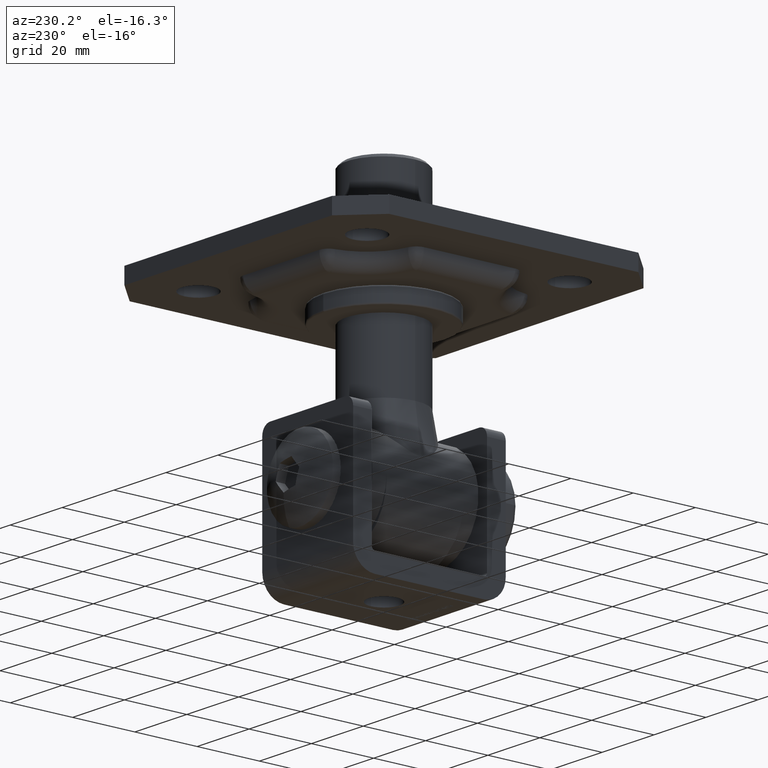
[diagram: clean part render]
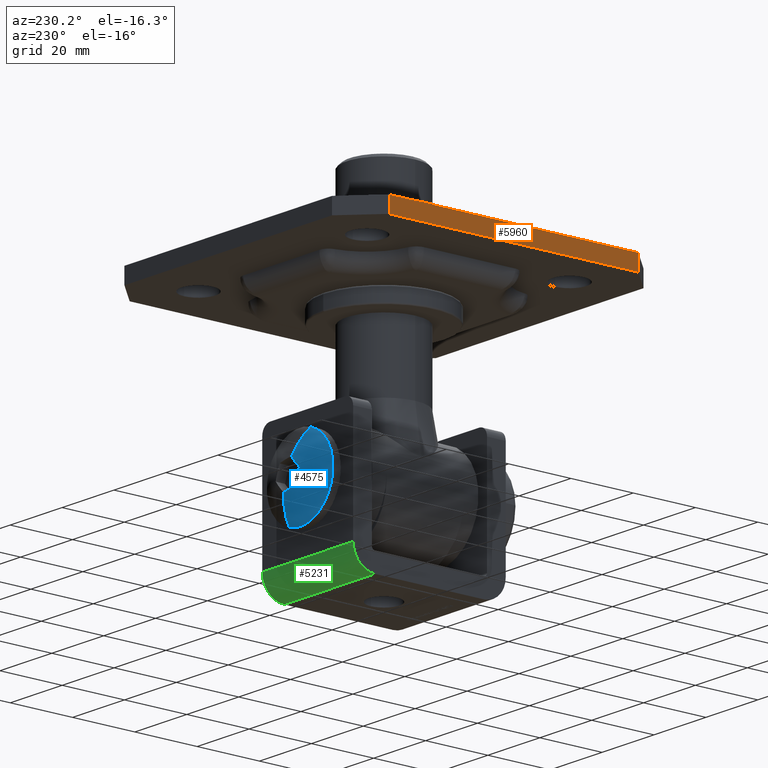
[diagram: same view with three faces highlighted in distinct colors, each labeled with its STEP entity id]
A machine part, auxiliary view with three faces highlighted in distinct colors.
Their STEP definitions:

[orange] entity #5960 — the highlighted planar face has unit normal (1, -0, -0).
#713 = VECTOR ( 'NONE', #20062, 1000.000000000000000 ) ;
#933 = CARTESIAN_POINT ( 'NONE',  ( 49.99999999999999300, 50.00000000000000000, 2.500000000000000000 ) ) ;
#1268 = CARTESIAN_POINT ( 'NONE',  ( 50.00000000000000000, -39.99999999999997900, -2.500000000000000000 ) ) ;
#2723 = PLANE ( 'NONE',  #14389 ) ;
#3048 = EDGE_CURVE ( 'NONE', #5602, #21319, #18386, .T. ) ;
#3401 = VECTOR ( 'NONE', #8300, 1000.000000000000000 ) ;
#4233 = ORIENTED_EDGE ( 'NONE', *, *, #4995, .T. ) ;
#4402 = CARTESIAN_POINT ( 'NONE',  ( 49.99999999999999300, 39.99999999999997200, 2.500000000000000000 ) ) ;
#4767 = CARTESIAN_POINT ( 'NONE',  ( 49.99999999999999300, 39.99999999999996400, -2.500000000000000000 ) ) ;
#4995 = EDGE_CURVE ( 'NONE', #21386, #21319, #10421, .T. ) ;
#5602 = VERTEX_POINT ( 'NONE', #20174 ) ;
#5834 = DIRECTION ( 'NONE',  ( 6.938893903907228400E-017, -1.000000000000000000, 0.0000000000000000000 ) ) ;
#5960 = ADVANCED_FACE ( 'NONE', ( #12839 ), #2723, .F. ) ;
#6424 = VECTOR ( 'NONE', #7456, 1000.000000000000000 ) ;
#7324 = VECTOR ( 'NONE', #9719, 1000.000000000000000 ) ;
#7456 = DIRECTION ( 'NONE',  ( -6.938893903907228400E-017, 1.000000000000000000, -0.0000000000000000000 ) ) ;
#8300 = DIRECTION ( 'NONE',  ( 0.0000000000000000000, 0.0000000000000000000, 1.000000000000000000 ) ) ;
#9719 = DIRECTION ( 'NONE',  ( -6.938893903907228400E-017, 1.000000000000000000, -0.0000000000000000000 ) ) ;
#10421 = LINE ( 'NONE', #18475, #3401 ) ;
#10607 = EDGE_LOOP ( 'NONE', ( #12786, #18126, #21280, #4233 ) ) ;
#12746 = VERTEX_POINT ( 'NONE', #1268 ) ;
#12786 = ORIENTED_EDGE ( 'NONE', *, *, #3048, .F. ) ;
#12839 = FACE_OUTER_BOUND ( 'NONE', #10607, .T. ) ;
#14210 = CARTESIAN_POINT ( 'NONE',  ( 49.99999999999999300, 50.00000000000000000, -2.500000000000000000 ) ) ;
#14389 = AXIS2_PLACEMENT_3D ( 'NONE', #933, #16416, #5834 ) ;
#16416 = DIRECTION ( 'NONE',  ( -1.000000000000000000, -6.938893903907228400E-017, 0.0000000000000000000 ) ) ;
#17725 = EDGE_CURVE ( 'NONE', #12746, #21386, #18600, .T. ) ;
#18126 = ORIENTED_EDGE ( 'NONE', *, *, #20646, .T. ) ;
#18386 = LINE ( 'NONE', #19987, #7324 ) ;
#18475 = CARTESIAN_POINT ( 'NONE',  ( 49.99999999999999300, 39.99999999999996400, 2.500000000000000000 ) ) ;
#18600 = LINE ( 'NONE', #14210, #6424 ) ;
#19219 = LINE ( 'NONE', #21769, #713 ) ;
#19987 = CARTESIAN_POINT ( 'NONE',  ( 49.99999999999999300, 50.00000000000000000, 2.500000000000000000 ) ) ;
#20062 = DIRECTION ( 'NONE',  ( 0.0000000000000000000, 0.0000000000000000000, -1.000000000000000000 ) ) ;
#20174 = CARTESIAN_POINT ( 'NONE',  ( 49.99999999999999300, -40.00000000000000000, 2.500000000000000000 ) ) ;
#20646 = EDGE_CURVE ( 'NONE', #5602, #12746, #19219, .T. ) ;
#21280 = ORIENTED_EDGE ( 'NONE', *, *, #17725, .T. ) ;
#21319 = VERTEX_POINT ( 'NONE', #4402 ) ;
#21386 = VERTEX_POINT ( 'NONE', #4767 ) ;
#21769 = CARTESIAN_POINT ( 'NONE',  ( 50.00000000000000000, -39.99999999999997900, 2.500000000000000000 ) ) ;

[blue] entity #4575 — the highlighted spherical surface has radius 20.3125 mm.
#364 = VERTEX_POINT ( 'NONE', #13013 ) ;
#643 = EDGE_CURVE ( 'NONE', #2245, #8007, #16289, .T. ) ;
#1033 = CIRCLE ( 'NONE', #11916, 12.75000000000000200 ) ;
#1127 = CARTESIAN_POINT ( 'NONE',  ( 0.0000000000000000000, 6.687499999999995600, 0.0000000000000000000 ) ) ;
#1193 = DIRECTION ( 'NONE',  ( 1.000000000000000000, -1.776991504721589600E-014, 0.0000000000000000000 ) ) ;
#1509 = DIRECTION ( 'NONE',  ( -0.0000000000000000000, -1.000000000000000000, -0.0000000000000000000 ) ) ;
#1526 = VERTEX_POINT ( 'NONE', #6640 ) ;
#1667 = DIRECTION ( 'NONE',  ( 0.0000000000000000000, 0.0000000000000000000, -1.000000000000000000 ) ) ;
#1763 = VERTEX_POINT ( 'NONE', #18116 ) ;
#1794 = ORIENTED_EDGE ( 'NONE', *, *, #643, .F. ) ;
#2050 = DIRECTION ( 'NONE',  ( -0.0000000000000000000, -1.000000000000000000, -0.0000000000000000000 ) ) ;
#2245 = VERTEX_POINT ( 'NONE', #21415 ) ;
#3195 = AXIS2_PLACEMENT_3D ( 'NONE', #12529, #5670, #11031 ) ;
#3284 = CARTESIAN_POINT ( 'NONE',  ( 0.0000000000000000000, 22.50000000000000000, 0.0000000000000000000 ) ) ;
#3750 = DIRECTION ( 'NONE',  ( 0.0000000000000000000, 0.0000000000000000000, -1.000000000000000000 ) ) ;
#4344 = EDGE_CURVE ( 'NONE', #8007, #1763, #1033, .T. ) ;
#4436 = CIRCLE ( 'NONE', #6062, 19.91475975878193000 ) ;
#4575 = ADVANCED_FACE ( 'NONE', ( #13641 ), #14711, .T. ) ;
#4646 = CARTESIAN_POINT ( 'NONE',  ( -3.464101615137753500, 6.687499999999995600, 1.999999999999998700 ) ) ;
#4834 = DIRECTION ( 'NONE',  ( 0.0000000000000000000, -0.0000000000000000000, -1.000000000000000000 ) ) ;
#5107 = ORIENTED_EDGE ( 'NONE', *, *, #9571, .T. ) ;
#5670 = DIRECTION ( 'NONE',  ( 1.224646799147353200E-016, -0.0000000000000000000, 1.000000000000000000 ) ) ;
#5893 = EDGE_CURVE ( 'NONE', #17775, #2245, #16845, .T. ) ;
#6062 = AXIS2_PLACEMENT_3D ( 'NONE', #4646, #17006, #20119 ) ;
#6464 = ORIENTED_EDGE ( 'NONE', *, *, #18073, .F. ) ;
#6640 = CARTESIAN_POINT ( 'NONE',  ( -4.618802153517001400, 26.46790249632617200, 4.336808689942017700E-016 ) ) ;
#7225 = CIRCLE ( 'NONE', #3195, 20.31250000000000400 ) ;
#7608 = DIRECTION ( 'NONE',  ( 1.000000000000000000, 0.0000000000000000000, 0.0000000000000000000 ) ) ;
#7770 = EDGE_LOOP ( 'NONE', ( #6464, #5107, #10785, #12024, #1794, #14774, #12068 ) ) ;
#8006 = DIRECTION ( 'NONE',  ( 0.0000000000000000000, 0.0000000000000000000, 1.000000000000000000 ) ) ;
#8007 = VERTEX_POINT ( 'NONE', #15638 ) ;
#9571 = EDGE_CURVE ( 'NONE', #1526, #364, #7225, .T. ) ;
#10179 = EDGE_CURVE ( 'NONE', #19159, #17775, #18038, .T. ) ;
#10785 = ORIENTED_EDGE ( 'NONE', *, *, #13702, .F. ) ;
#11021 = CARTESIAN_POINT ( 'NONE',  ( -2.309401076758501600, 26.46790249632617200, 4.000000000000000000 ) ) ;
#11031 = DIRECTION ( 'NONE',  ( 1.000000000000000000, 0.0000000000000000000, -1.224646799147353500E-016 ) ) ;
#11071 = CARTESIAN_POINT ( 'NONE',  ( 2.309401076758504300, 26.46790249632617200, 4.000000000000000000 ) ) ;
#11515 = CARTESIAN_POINT ( 'NONE',  ( 0.0000000000000000000, 6.687499999999995600, 0.0000000000000000000 ) ) ;
#11916 = AXIS2_PLACEMENT_3D ( 'NONE', #3284, #1509, #1667 ) ;
#12024 = ORIENTED_EDGE ( 'NONE', *, *, #4344, .F. ) ;
#12068 = ORIENTED_EDGE ( 'NONE', *, *, #10179, .F. ) ;
#12383 = CARTESIAN_POINT ( 'NONE',  ( 0.0000000000000000000, 22.50000000000000000, 0.0000000000000000000 ) ) ;
#12529 = CARTESIAN_POINT ( 'NONE',  ( 0.0000000000000000000, 6.687499999999995600, 0.0000000000000000000 ) ) ;
#13013 = CARTESIAN_POINT ( 'NONE',  ( -12.75000000000000200, 22.50000000000000000, 1.561424668912875700E-015 ) ) ;
#13641 = FACE_OUTER_BOUND ( 'NONE', #7770, .T. ) ;
#13702 = EDGE_CURVE ( 'NONE', #1763, #364, #19495, .T. ) ;
#14089 = DIRECTION ( 'NONE',  ( -0.8660254037844389300, -0.0000000000000000000, -0.4999999999999998300 ) ) ;
#14711 = SPHERICAL_SURFACE ( 'NONE', #16119, 20.31250000000000400 ) ;
#14774 = ORIENTED_EDGE ( 'NONE', *, *, #5893, .F. ) ;
#14860 = DIRECTION ( 'NONE',  ( 0.0000000000000000000, 0.0000000000000000000, -1.000000000000000000 ) ) ;
#15638 = CARTESIAN_POINT ( 'NONE',  ( 12.75000000000000200, 22.50000000000000000, 0.0000000000000000000 ) ) ;
#16049 = DIRECTION ( 'NONE',  ( 0.4999999999999997200, -5.313553028824360600E-015, -0.8660254037844388200 ) ) ;
#16119 = AXIS2_PLACEMENT_3D ( 'NONE', #11515, #8006, #7608 ) ;
#16289 = CIRCLE ( 'NONE', #21993, 20.31250000000000400 ) ;
#16753 = CARTESIAN_POINT ( 'NONE',  ( 0.0000000000000000000, 6.687499999999995600, 4.000000000000000000 ) ) ;
#16845 = CIRCLE ( 'NONE', #18566, 19.91475975878193300 ) ;
#17006 = DIRECTION ( 'NONE',  ( 0.8660254037844387100, -0.0000000000000000000, -0.4999999999999999400 ) ) ;
#17775 = VERTEX_POINT ( 'NONE', #11071 ) ;
#18038 = CIRCLE ( 'NONE', #20321, 19.91475975878193000 ) ;
#18073 = EDGE_CURVE ( 'NONE', #1526, #19159, #4436, .T. ) ;
#18116 = CARTESIAN_POINT ( 'NONE',  ( 1.561424668912875900E-015, 22.50000000000000000, 12.75000000000000400 ) ) ;
#18199 = DIRECTION ( 'NONE',  ( -1.000000000000000000, 0.0000000000000000000, 0.0000000000000000000 ) ) ;
#18566 = AXIS2_PLACEMENT_3D ( 'NONE', #20951, #14089, #16049 ) ;
#19159 = VERTEX_POINT ( 'NONE', #11021 ) ;
#19495 = CIRCLE ( 'NONE', #19523, 12.75000000000000200 ) ;
#19523 = AXIS2_PLACEMENT_3D ( 'NONE', #12383, #2050, #3750 ) ;
#20119 = DIRECTION ( 'NONE',  ( 0.4999999999999998900, -4.442478761803974000E-015, 0.8660254037844388200 ) ) ;
#20321 = AXIS2_PLACEMENT_3D ( 'NONE', #16753, #4834, #1193 ) ;
#20951 = CARTESIAN_POINT ( 'NONE',  ( 3.464101615137754800, 6.687499999999995600, 1.999999999999998700 ) ) ;
#21415 = CARTESIAN_POINT ( 'NONE',  ( 4.618802153517006700, 26.46790249632617200, -1.301042606982605300E-015 ) ) ;
#21993 = AXIS2_PLACEMENT_3D ( 'NONE', #1127, #14860, #18199 ) ;

[green] entity #5231 — the highlighted cylindrical surface (edge-blend (fillet) strip) has radius 7 mm, axis along (-1, -0, -0).
#358 = DIRECTION ( 'NONE',  ( 0.0000000000000000000, 0.0000000000000000000, -1.000000000000000000 ) ) ;
#1285 = CARTESIAN_POINT ( 'NONE',  ( -17.50000000000000000, 24.50000000000000000, -19.00000000000000000 ) ) ;
#1296 = CIRCLE ( 'NONE', #2808, 7.000000000000002700 ) ;
#1900 = CARTESIAN_POINT ( 'NONE',  ( 17.50000000000000000, 17.50000000000000000, -26.00000000000000400 ) ) ;
#2366 = CYLINDRICAL_SURFACE ( 'NONE', #14804, 7.000000000000000900 ) ;
#2808 = AXIS2_PLACEMENT_3D ( 'NONE', #15192, #17083, #22064 ) ;
#3891 = VERTEX_POINT ( 'NONE', #18180 ) ;
#5223 = VECTOR ( 'NONE', #11234, 1000.000000000000000 ) ;
#5231 = ADVANCED_FACE ( 'NONE', ( #6327 ), #2366, .T. ) ;
#6327 = FACE_OUTER_BOUND ( 'NONE', #18667, .T. ) ;
#9079 = DIRECTION ( 'NONE',  ( -1.000000000000000000, -0.0000000000000000000, -0.0000000000000000000 ) ) ;
#9085 = VERTEX_POINT ( 'NONE', #15304 ) ;
#9311 = CARTESIAN_POINT ( 'NONE',  ( 17.50000000000000000, 24.50000000000000000, -19.00000000000000000 ) ) ;
#10790 = VERTEX_POINT ( 'NONE', #1285 ) ;
#11234 = DIRECTION ( 'NONE',  ( -1.000000000000000000, -0.0000000000000000000, -0.0000000000000000000 ) ) ;
#12062 = VERTEX_POINT ( 'NONE', #12761 ) ;
#12120 = EDGE_CURVE ( 'NONE', #12062, #9085, #1296, .T. ) ;
#12466 = ORIENTED_EDGE ( 'NONE', *, *, #15816, .T. ) ;
#12761 = CARTESIAN_POINT ( 'NONE',  ( 17.50000000000000000, 17.50000000000000000, -26.00000000000000400 ) ) ;
#13806 = EDGE_CURVE ( 'NONE', #9085, #10790, #16302, .T. ) ;
#13981 = ORIENTED_EDGE ( 'NONE', *, *, #13806, .F. ) ;
#14804 = AXIS2_PLACEMENT_3D ( 'NONE', #18818, #15425, #18946 ) ;
#15192 = CARTESIAN_POINT ( 'NONE',  ( 17.50000000000000000, 17.50000000000000000, -19.00000000000000000 ) ) ;
#15304 = CARTESIAN_POINT ( 'NONE',  ( 17.50000000000000000, 24.50000000000000000, -19.00000000000000000 ) ) ;
#15425 = DIRECTION ( 'NONE',  ( -1.000000000000000000, -0.0000000000000000000, -0.0000000000000000000 ) ) ;
#15596 = ORIENTED_EDGE ( 'NONE', *, *, #18996, .T. ) ;
#15711 = LINE ( 'NONE', #1900, #21561 ) ;
#15816 = EDGE_CURVE ( 'NONE', #3891, #10790, #18342, .T. ) ;
#15933 = CARTESIAN_POINT ( 'NONE',  ( -17.50000000000000000, 17.50000000000000000, -19.00000000000000000 ) ) ;
#16302 = LINE ( 'NONE', #9311, #5223 ) ;
#17083 = DIRECTION ( 'NONE',  ( 1.000000000000000000, 0.0000000000000000000, 0.0000000000000000000 ) ) ;
#17284 = ORIENTED_EDGE ( 'NONE', *, *, #12120, .F. ) ;
#18180 = CARTESIAN_POINT ( 'NONE',  ( -17.50000000000000000, 17.50000000000000000, -26.00000000000000400 ) ) ;
#18342 = CIRCLE ( 'NONE', #20677, 7.000000000000002700 ) ;
#18667 = EDGE_LOOP ( 'NONE', ( #12466, #13981, #17284, #15596 ) ) ;
#18818 = CARTESIAN_POINT ( 'NONE',  ( 17.50000000000000000, 17.50000000000000000, -19.00000000000000000 ) ) ;
#18946 = DIRECTION ( 'NONE',  ( 0.0000000000000000000, 0.0000000000000000000, 1.000000000000000000 ) ) ;
#18996 = EDGE_CURVE ( 'NONE', #12062, #3891, #15711, .T. ) ;
#19203 = DIRECTION ( 'NONE',  ( 1.000000000000000000, 0.0000000000000000000, 0.0000000000000000000 ) ) ;
#20677 = AXIS2_PLACEMENT_3D ( 'NONE', #15933, #19203, #358 ) ;
#21561 = VECTOR ( 'NONE', #9079, 1000.000000000000000 ) ;
#22064 = DIRECTION ( 'NONE',  ( 0.0000000000000000000, 0.0000000000000000000, -1.000000000000000000 ) ) ;